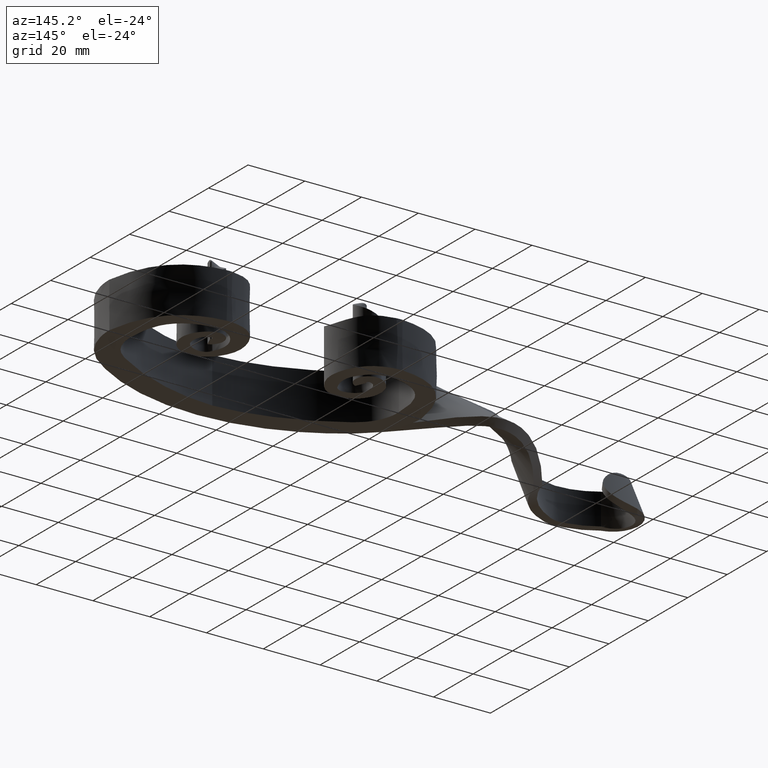
[diagram: clean part render]
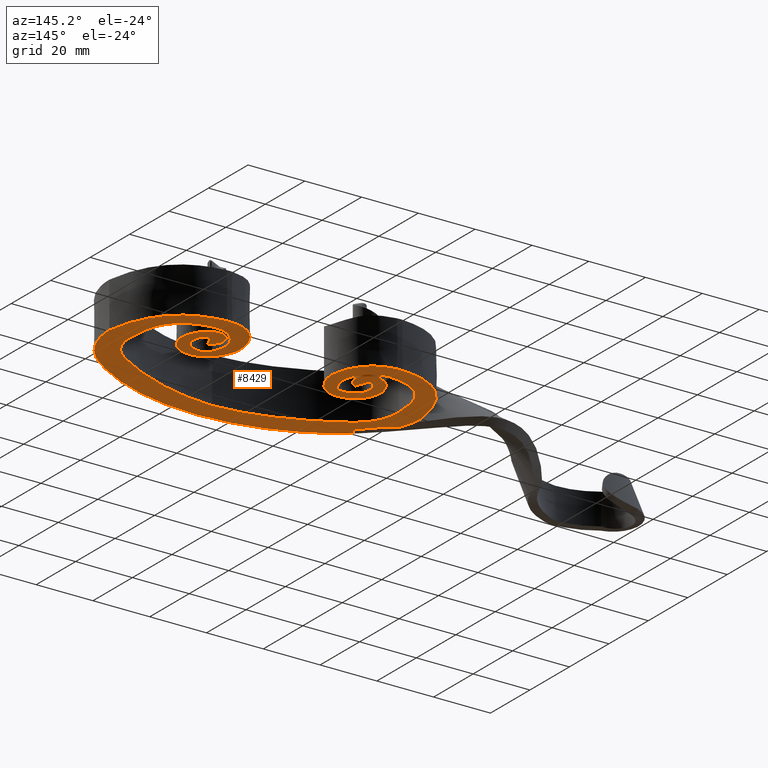
[diagram: same view with one face highlighted and labeled with its STEP entity id]
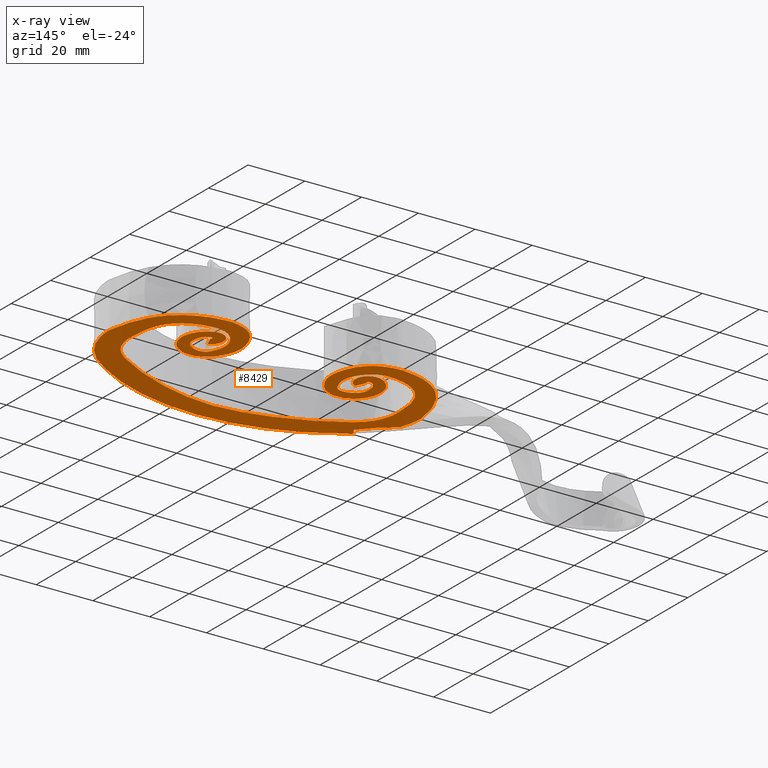
[diagram: x-ray of the same camera — body ghosted, the highlighted face saturated]
A machine part, auxiliary view. The second image highlights one B-rep face of the part: STEP entity #8429.
The next image is the same camera in x-ray: the body ghosted, the highlighted face saturated — about 0% of this face is hidden behind the body in this view.
In plain terms, the highlighted planar face has unit normal (-0, -0, -1).
Its self-contained STEP definition (entity closure, byte-faithful):
#58 = CARTESIAN_POINT ( 'NONE',  ( 27.35141491179329165, 17.43300535261033701, -8.000000000000003553 ) ) ;
#162 = EDGE_CURVE ( 'NONE', #13984, #8072, #6244, .T. ) ;
#212 = CARTESIAN_POINT ( 'NONE',  ( 24.53251284197605031, 13.97545476166239276, -8.000000000000003553 ) ) ;
#340 = VERTEX_POINT ( 'NONE', #15073 ) ;
#357 = CARTESIAN_POINT ( 'NONE',  ( -29.53353458525907627, -15.68038857561360544, -7.999999999999994671 ) ) ;
#359 = CARTESIAN_POINT ( 'NONE',  ( -55.00000000000000711, 5.000000000000189182, -8.000000000000000000 ) ) ;
#423 = ORIENTED_EDGE ( 'NONE', *, *, #5360, .T. ) ;
#431 = CARTESIAN_POINT ( 'NONE',  ( -51.66292495566779763, -4.989781795069832881, -7.999999999999994671 ) ) ;
#450 = CARTESIAN_POINT ( 'NONE',  ( -32.01821231798930256, -24.73634076149535943, -8.000000000000000000 ) ) ;
#463 = ORIENTED_EDGE ( 'NONE', *, *, #14245, .F. ) ;
#553 = EDGE_CURVE ( 'NONE', #11996, #5792, #4849, .T. ) ;
#562 = CARTESIAN_POINT ( 'NONE',  ( -29.24426990735605614, 21.38113662013650895, -7.999999999999998224 ) ) ;
#589 = CARTESIAN_POINT ( 'NONE',  ( 14.85740231020177582, 15.85993736794336506, -7.999999999999998224 ) ) ;
#596 = CARTESIAN_POINT ( 'NONE',  ( -27.95731622597993393, 17.60096872316207950, -8.000000000000000000 ) ) ;
#619 = CARTESIAN_POINT ( 'NONE',  ( -29.52316920676388534, 21.28174370169174523, -8.000000000000000000 ) ) ;
#621 = ORIENTED_EDGE ( 'NONE', *, *, #162, .T. ) ;
#630 = DIRECTION ( 'NONE',  ( -0.3914632451959847437, 0.9201937446324162106, -4.336808689942015764E-16 ) ) ;
#653 = CARTESIAN_POINT ( 'NONE',  ( -54.59758995820636329, 8.024643794869113833, -8.000000000000000000 ) ) ;
#680 = B_SPLINE_CURVE_WITH_KNOTS ( 'NONE', 3,
 ( #8183, #13292, #589, #10737, #701, #3196 ),
 .UNSPECIFIED., .F., .F.,
 ( 4, 1, 1, 4 ),
 ( 0.004080996406064379967, 0.3116771181625628273, 0.6603864596982236268, 0.9700719320905434317 ),
 .UNSPECIFIED. ) ;
#701 = CARTESIAN_POINT ( 'NONE',  ( 25.16689536574065755, 29.38085405141531936, -8.000000000000000000 ) ) ;
#780 = B_SPLINE_CURVE_WITH_KNOTS ( 'NONE', 3,
 ( #6655, #8011, #431, #12965, #8130, #5552, #6872, #15473, #15424, #9298 ),
 .UNSPECIFIED., .F., .F.,
 ( 4, 2, 2, 2, 4 ),
 ( 0.002786137763228973673, 0.006224714455727269405, 0.009663291148225566438, 0.01310186784072386000, 0.01654044453322215530 ),
 .UNSPECIFIED. ) ;
#784 = CARTESIAN_POINT ( 'NONE',  ( 30.31277531847544182, 29.98750050194372463, -8.000000000000000000 ) ) ;
#788 = CARTESIAN_POINT ( 'NONE',  ( -32.41479324200518874, 6.489582292845747169, -8.000000000000000000 ) ) ;
#802 = VERTEX_POINT ( 'NONE', #5372 ) ;
#812 = CARTESIAN_POINT ( 'NONE',  ( 28.11336640407603582, 4.086658698443428328, -8.000000000000000000 ) ) ;
#822 = CARTESIAN_POINT ( 'NONE',  ( 41.95423856881285474, 20.06569009778816337, -8.000000000000000000 ) ) ;
#967 = CARTESIAN_POINT ( 'NONE',  ( -27.54234309371933520, 16.69233630068163521, -8.000000000000003553 ) ) ;
#1024 = CARTESIAN_POINT ( 'NONE',  ( -27.29192475118565042, 16.96018775496911601, -8.000000000000000000 ) ) ;
#1032 = ORIENTED_EDGE ( 'NONE', *, *, #1654, .F. ) ;
#1036 = CARTESIAN_POINT ( 'NONE',  ( 31.02419311199154350, 29.92946926477331360, -8.000000000000000000 ) ) ;
#1047 = CARTESIAN_POINT ( 'NONE',  ( 54.98130175311230516, 0.7067885454106509480, -8.000000000000000000 ) ) ;
#1237 = CARTESIAN_POINT ( 'NONE',  ( 20.26275431740619126, 16.29881103579261392, -7.999999999999989342 ) ) ;
#1264 = CARTESIAN_POINT ( 'NONE',  ( 30.63733038037684508, 10.64071114690243647, -8.000000000000000000 ) ) ;
#1282 = CARTESIAN_POINT ( 'NONE',  ( -27.29773437634181477, 17.33820020088107938, -7.999999999999998224 ) ) ;
#1291 = B_SPLINE_CURVE_WITH_KNOTS ( 'NONE', 3,
 ( #12838, #6481, #7737, #212, #5328, #15152, #9013, #4008, #7631, #2636, #11424, #5383, #9114, #4324, #12947, #9342, #5436 ),
 .UNSPECIFIED., .F., .F.,
 ( 4, 1, 1, 1, 1, 1, 1, 1, 1, 1, 1, 1, 1, 1, 4 ),
 ( 0.000000000000000000, 0.06224708609225510642, 0.1251148688984405621, 0.1879597026410851079, 0.2501184941809708184, 0.3330926632540625043, 0.4170258302971351361, 0.4999999993703999612, 0.5829741683194525903, 0.6669073344553735350, 0.7498815034026022897, 0.8120402983732976088, 0.8748851209897182679, 0.9377528963443301224, 1.000000000000000000 ),
 .UNSPECIFIED. ) ;
#1305 = CARTESIAN_POINT ( 'NONE',  ( 27.76632154662965490, 17.64109695628950902, -8.000000000000000000 ) ) ;
#1332 = CARTESIAN_POINT ( 'NONE',  ( -27.88316912377825574, 17.62781668673478563, -8.000000000000000000 ) ) ;
#1355 = CARTESIAN_POINT ( 'NONE',  ( 27.49508889079090324, 16.71557422868988496, -8.000000000000003553 ) ) ;
#1387 = CARTESIAN_POINT ( 'NONE',  ( -27.93268240063904528, 17.60988839804848993, -7.999999999999998224 ) ) ;
#1388 = ORIENTED_EDGE ( 'NONE', *, *, #553, .T. ) ;
#1391 = CARTESIAN_POINT ( 'NONE',  ( 23.95421201824339619, 22.14712966473697975, -8.000000000000001776 ) ) ;
#1398 = B_SPLINE_CURVE_WITH_KNOTS ( 'NONE', 3,
 ( #15365, #10506, #15265, #5446 ),
 .UNSPECIFIED., .F., .F.,
 ( 4, 4 ),
 ( 8.673617379884035472E-19, 0.0003790624672732301973 ),
 .UNSPECIFIED. ) ;
#1438 = B_SPLINE_CURVE_WITH_KNOTS ( 'NONE', 3,
 ( #15845, #9729, #4606, #8270 ),
 .UNSPECIFIED., .F., .F.,
 ( 4, 4 ),
 ( 0.000000000000000000, 0.001052690893231712343 ),
 .UNSPECIFIED. ) ;
#1522 = ORIENTED_EDGE ( 'NONE', *, *, #11106, .T. ) ;
#1602 = CARTESIAN_POINT ( 'NONE',  ( -23.97676300584909725, 14.65720858399145499, -8.000000000000001776 ) ) ;
#1618 = CARTESIAN_POINT ( 'NONE',  ( -47.20418427583136634, 2.330363794932157617, -8.000000000000003553 ) ) ;
#1654 = EDGE_CURVE ( 'NONE', #6097, #13955, #8661, .T. ) ;
#1658 = CARTESIAN_POINT ( 'NONE',  ( -25.20227544788505725, 13.39731936166328730, -7.999999999999998224 ) ) ;
#1901 = VERTEX_POINT ( 'NONE', #5414 ) ;
#1915 = ORIENTED_EDGE ( 'NONE', *, *, #8875, .T. ) ;
#1927 = CARTESIAN_POINT ( 'NONE',  ( -49.90959665434134251, 20.28062515591745196, -8.000000000000000000 ) ) ;
#1952 = ORIENTED_EDGE ( 'NONE', *, *, #6873, .T. ) ;
#1954 = CARTESIAN_POINT ( 'NONE',  ( -20.45590826232299264, 5.503144682730331638, -8.000000000000000000 ) ) ;
#1976 = CARTESIAN_POINT ( 'NONE',  ( 32.41479324200518874, 6.489582292845747169, -8.000000000000000000 ) ) ;
#1984 = CARTESIAN_POINT ( 'NONE',  ( 38.23519270219507860, 22.70785905401211124, -8.000000000000000000 ) ) ;
#2047 = CARTESIAN_POINT ( 'NONE',  ( -53.11434259198252761, 14.48051185666181517, -8.000000000000000000 ) ) ;
#2068 = CARTESIAN_POINT ( 'NONE',  ( -23.73755719027468913, 3.715012993863820778, -7.999999999999998224 ) ) ;
#2075 = CARTESIAN_POINT ( 'NONE',  ( -29.42696231951486752, 17.37574113573457879, -8.000000000000000000 ) ) ;
#2087 = CARTESIAN_POINT ( 'NONE',  ( -31.02419311199154350, 29.92946926477331360, -8.000000000000000000 ) ) ;
#2147 = CARTESIAN_POINT ( 'NONE',  ( 28.89569971876204590, 29.87567134763981969, -8.000000000000000000 ) ) ;
#2172 = B_SPLINE_CURVE_WITH_KNOTS ( 'NONE', 3,
 ( #2840, #11573, #357, #10491, #9164, #1618, #2890 ),
 .UNSPECIFIED., .F., .F.,
 ( 4, 2, 1, 4 ),
 ( 0.000000000000000000, 0.6694773948472175773, 0.8174220836023660119, 1.000000000000000000 ),
 .UNSPECIFIED. ) ;
#2201 = VECTOR ( 'NONE', #6186, 1000.000000000000227 ) ;
#2211 = CARTESIAN_POINT ( 'NONE',  ( 46.66302677014277833, 12.24855364573767069, -8.000000000000001776 ) ) ;
#2317 = CARTESIAN_POINT ( 'NONE',  ( 18.71966440188703729, 7.712955228803216379, -8.000000000000000000 ) ) ;
#2321 = CARTESIAN_POINT ( 'NONE',  ( -29.44961396039283841, 23.92436144472908666, -8.000000000000000000 ) ) ;
#2406 = CARTESIAN_POINT ( 'NONE',  ( -24.30633065114623292, 7.461576278286395691, -8.000000000000000000 ) ) ;
#2437 = EDGE_CURVE ( 'NONE', #9599, #6985, #12695, .T. ) ;
#2458 = CARTESIAN_POINT ( 'NONE',  ( -29.64026892058477358, 9.421595619830604562, -8.000000000000000000 ) ) ;
#2474 = CARTESIAN_POINT ( 'NONE',  ( 27.26487118608070759, 17.05762739632987390, -8.000000000000003553 ) ) ;
#2527 = CARTESIAN_POINT ( 'NONE',  ( 27.95731622597993393, 17.60096872316207950, -8.000000000000000000 ) ) ;
#2573 = ORIENTED_EDGE ( 'NONE', *, *, #6196, .T. ) ;
#2580 = CARTESIAN_POINT ( 'NONE',  ( 27.33166035116111914, 16.88313541954616426, -8.000000000000005329 ) ) ;
#2581 = CARTESIAN_POINT ( 'NONE',  ( -23.95421201824339619, 22.14712966473697975, -8.000000000000001776 ) ) ;
#2636 = CARTESIAN_POINT ( 'NONE',  ( 24.18662504930015089, 19.94982479178699109, -8.000000000000001776 ) ) ;
#2664 = CARTESIAN_POINT ( 'NONE',  ( -27.26666072927684326, 17.23377777317652715, -8.000000000000003553 ) ) ;
#2666 = CARTESIAN_POINT ( 'NONE',  ( 27.56585298078394430, 16.68077497852966928, -8.000000000000003553 ) ) ;
#2751 = CARTESIAN_POINT ( 'NONE',  ( 29.44961396039283841, 23.92436144472908666, -8.000000000000000000 ) ) ;
#2840 = CARTESIAN_POINT ( 'NONE',  ( 0.000000000000000000, -22.00000000000000711, -8.000000000000003553 ) ) ;
#2890 = CARTESIAN_POINT ( 'NONE',  ( -47.00000000000000711, 5.000000000000132339, -8.000000000000001776 ) ) ;
#2967 = CARTESIAN_POINT ( 'NONE',  ( -29.44961396039283841, 23.92436144472908666, -8.000000000000000000 ) ) ;
#2968 = EDGE_CURVE ( 'NONE', #11996, #6985, #3862, .T. ) ;
#3115 = CARTESIAN_POINT ( 'NONE',  ( -29.79828980998388133, 23.97852399461976702, -8.000000000000000000 ) ) ;
#3127 = VERTEX_POINT ( 'NONE', #2751 ) ;
#3136 = CARTESIAN_POINT ( 'NONE',  ( 30.39536798590259536, 5.078883428836730829, -8.000000000000000000 ) ) ;
#3150 = CARTESIAN_POINT ( 'NONE',  ( -40.57441793135537011, 28.19745903484332317, -8.000000000000000000 ) ) ;
#3196 = CARTESIAN_POINT ( 'NONE',  ( 28.89569971876204590, 29.87567134763981969, -8.000000000000000000 ) ) ;
#3200 = VERTEX_POINT ( 'NONE', #7964 ) ;
#3281 = CARTESIAN_POINT ( 'NONE',  ( -22.04224958955826352, 9.875704654356788126, -8.000000000000000000 ) ) ;
#3319 = CARTESIAN_POINT ( 'NONE',  ( 18.79263901780954882, 7.609747715179471683, -8.000000000000000000 ) ) ;
#3322 = CARTESIAN_POINT ( 'NONE',  ( -34.72339498551249903, 29.62772075184603793, -8.000000000000000000 ) ) ;
#3374 = CARTESIAN_POINT ( 'NONE',  ( 13.96405436782172060, -21.72749235841372695, -8.000000000000003553 ) ) ;
#3450 = CARTESIAN_POINT ( 'NONE',  ( 0.000000000000000000, -22.00000000000000711, -8.000000000000003553 ) ) ;
#3588 = CARTESIAN_POINT ( 'NONE',  ( -47.03997305725518885, 7.327960069054856973, -8.000000000000001776 ) ) ;
#3614 = DIRECTION ( 'NONE',  ( -2.860448284855385506E-16, -4.336808689942017736E-16, -1.000000000000000000 ) ) ;
#3690 = CARTESIAN_POINT ( 'NONE',  ( -21.93075747870534187, 10.14446872611722128, -8.000000000000000000 ) ) ;
#3700 = CARTESIAN_POINT ( 'NONE',  ( 55.00000000000000711, 5.000000000000189182, -8.000000000000000000 ) ) ;
#3726 = VERTEX_POINT ( 'NONE', #15055 ) ;
#3729 = CARTESIAN_POINT ( 'NONE',  ( -27.56604201832552548, 17.60454223804948981, -7.999999999999998224 ) ) ;
#3800 = CARTESIAN_POINT ( 'NONE',  ( 27.93268240063904528, 17.60988839804848993, -7.999999999999998224 ) ) ;
#3862 = B_SPLINE_CURVE_WITH_KNOTS ( 'NONE', 3,
 ( #4202, #7769, #1658, #9150, #1602, #6732, #4258, #10424, #4144, #14028, #10476, #12931, #5416, #7926, #9204, #562, #13265 ),
 .UNSPECIFIED., .F., .F.,
 ( 4, 1, 1, 1, 1, 1, 1, 1, 1, 1, 1, 1, 1, 1, 4 ),
 ( 0.000000000000000000, 0.06224708609225510642, 0.1251148688984405621, 0.1879597026410851079, 0.2501184941809708184, 0.3330926632540625043, 0.4170258302971351361, 0.4999999993703999612, 0.5829741683194525903, 0.6669073344553735350, 0.7498815034026022897, 0.8120402983732976088, 0.8748851209897182679, 0.9377528963443301224, 1.000000000000000000 ),
 .UNSPECIFIED. ) ;
#3887 = CARTESIAN_POINT ( 'NONE',  ( 29.44961396039283841, 23.92436144472908666, -8.000000000000000000 ) ) ;
#3928 = CARTESIAN_POINT ( 'NONE',  ( 47.00000000000000711, 5.000000000000132339, -8.000000000000001776 ) ) ;
#3981 = B_SPLINE_CURVE_WITH_KNOTS ( 'NONE', 3,
 ( #4546, #784, #5749, #13316 ),
 .UNSPECIFIED., .F., .F.,
 ( 4, 4 ),
 ( 1.040834085586084257E-17, 0.002129173158977344139 ),
 .UNSPECIFIED. ) ;
#4008 = CARTESIAN_POINT ( 'NONE',  ( 23.25861001801633066, 17.76838467196084181, -8.000000000000001776 ) ) ;
#4064 = EDGE_CURVE ( 'NONE', #340, #8873, #8701, .T. ) ;
#4144 = CARTESIAN_POINT ( 'NONE',  ( -23.57005311635930767, 18.92400776751703262, -7.999999999999998224 ) ) ;
#4193 = EDGE_CURVE ( 'NONE', #10246, #14311, #15528, .T. ) ;
#4202 = CARTESIAN_POINT ( 'NONE',  ( -26.00000000000000711, 13.00000000000000355, -8.000000000000001776 ) ) ;
#4243 = VERTEX_POINT ( 'NONE', #7198 ) ;
#4258 = CARTESIAN_POINT ( 'NONE',  ( -23.24737758729707693, 16.59913720156693984, -7.999999999999998224 ) ) ;
#4262 = CARTESIAN_POINT ( 'NONE',  ( -29.44961396039283841, 23.92436144472908666, -8.000000000000000000 ) ) ;
#4301 = CARTESIAN_POINT ( 'NONE',  ( 22.04224958955826352, 9.875704654356788126, -8.000000000000000000 ) ) ;
#4311 = VERTEX_POINT ( 'NONE', #1036 ) ;
#4324 = CARTESIAN_POINT ( 'NONE',  ( 27.80268693093351118, 21.66249558907877670, -8.000000000000001776 ) ) ;
#4334 = EDGE_CURVE ( 'NONE', #6097, #3200, #4410, .T. ) ;
#4410 = B_SPLINE_CURVE_WITH_KNOTS ( 'NONE', 3,
 ( #16032, #14712, #9753, #3690 ),
 .UNSPECIFIED., .F., .F.,
 ( 4, 4 ),
 ( 1.350151005884234066E-15, 0.0002909718492439993453 ),
 .UNSPECIFIED. ) ;
#4423 = CARTESIAN_POINT ( 'NONE',  ( 21.97227120249229060, 10.05668509429353286, -8.000000000000010658 ) ) ;
#4446 = ORIENTED_EDGE ( 'NONE', *, *, #10718, .T. ) ;
#4526 = CARTESIAN_POINT ( 'NONE',  ( 44.85664144164155687, 16.61578162626717514, -8.000000000000001776 ) ) ;
#4535 = B_SPLINE_CURVE_WITH_KNOTS ( 'NONE', 3,
 ( #9203, #5463, #450, #11890 ),
 .UNSPECIFIED., .F., .F.,
 ( 4, 4 ),
 ( 0.000000000000000000, 0.6694773948465680968 ),
 .UNSPECIFIED. ) ;
#4546 = CARTESIAN_POINT ( 'NONE',  ( 31.02419311199154350, 29.92946926477331360, -8.000000000000000000 ) ) ;
#4563 = ORIENTED_EDGE ( 'NONE', *, *, #10919, .F. ) ;
#4572 = CARTESIAN_POINT ( 'NONE',  ( 35.00064138199365971, 14.08806735994447479, -8.000000000000000000 ) ) ;
#4601 = B_SPLINE_CURVE_WITH_KNOTS ( 'NONE', 3,
 ( #13677, #8536, #14944, #4867, #15988, #1047, #3700 ),
 .UNSPECIFIED., .F., .F.,
 ( 4, 2, 1, 4 ),
 ( 0.000000000000000000, 0.6694773948472175773, 0.8174220836023660119, 1.000000000000000000 ),
 .UNSPECIFIED. ) ;
#4606 = CARTESIAN_POINT ( 'NONE',  ( 30.14877174253979675, 23.99558548885704212, -8.000000000000014211 ) ) ;
#4631 = CARTESIAN_POINT ( 'NONE',  ( 34.25946423951132402, 8.843206983007620536, -8.000000000000000000 ) ) ;
#4653 = ORIENTED_EDGE ( 'NONE', *, *, #2437, .T. ) ;
#4694 = CARTESIAN_POINT ( 'NONE',  ( 18.94680795299915133, 7.409485030458390575, -8.000000000000000000 ) ) ;
#4750 = CARTESIAN_POINT ( 'NONE',  ( 30.50105975805525915, 23.97554592744615931, -8.000000000000000000 ) ) ;
#4787 = CARTESIAN_POINT ( 'NONE',  ( -27.49508889079090324, 16.71557422868988496, -8.000000000000003553 ) ) ;
#4802 = CARTESIAN_POINT ( 'NONE',  ( -44.85664144164155687, 16.61578162626717514, -8.000000000000001776 ) ) ;
#4849 = LINE ( 'NONE', #5475, #6585 ) ;
#4860 = CARTESIAN_POINT ( 'NONE',  ( -30.50105975805525915, 23.97554592744615931, -8.000000000000000000 ) ) ;
#4867 = CARTESIAN_POINT ( 'NONE',  ( 47.86878474599605227, -12.84841144050293948, -7.999999999999998224 ) ) ;
#4879 = CARTESIAN_POINT ( 'NONE',  ( 22.54332498755603709, 8.480141711833205420, -8.000000000000000000 ) ) ;
#4896 = CARTESIAN_POINT ( 'NONE',  ( -27.95731622597993393, 17.60096872316207950, -8.000000000000000000 ) ) ;
#4963 = ORIENTED_EDGE ( 'NONE', *, *, #14533, .F. ) ;
#5036 = CARTESIAN_POINT ( 'NONE',  ( 22.04224958955826352, 9.875704654356788126, -8.000000000000000000 ) ) ;
#5135 = CARTESIAN_POINT ( 'NONE',  ( 29.64026892058477358, 9.421595619830604562, -8.000000000000000000 ) ) ;
#5189 = VERTEX_POINT ( 'NONE', #8007 ) ;
#5206 = CARTESIAN_POINT ( 'NONE',  ( -27.95731622597993393, 17.60096872316207950, -8.000000000000000000 ) ) ;
#5277 = CARTESIAN_POINT ( 'NONE',  ( -53.47191083638099229, -3.581618127449665234, -8.000000000000000000 ) ) ;
#5304 = ORIENTED_EDGE ( 'NONE', *, *, #8395, .F. ) ;
#5328 = CARTESIAN_POINT ( 'NONE',  ( 23.97676300584909725, 14.65720858399145499, -8.000000000000001776 ) ) ;
#5360 = EDGE_CURVE ( 'NONE', #13831, #9663, #15644, .T. ) ;
#5372 = CARTESIAN_POINT ( 'NONE',  ( -47.00000000000000711, 5.000000000000132339, -8.000000000000001776 ) ) ;
#5383 = CARTESIAN_POINT ( 'NONE',  ( 25.97208376904264071, 21.31541992363372984, -8.000000000000000000 ) ) ;
#5414 = CARTESIAN_POINT ( 'NONE',  ( -31.02419311199154350, 29.92946926477331360, -8.000000000000000000 ) ) ;
#5416 = CARTESIAN_POINT ( 'NONE',  ( -26.92610165030750835, 21.59007697777456158, -8.000000000000000000 ) ) ;
#5436 = CARTESIAN_POINT ( 'NONE',  ( 29.52316920676388534, 21.28174370169174523, -8.000000000000000000 ) ) ;
#5446 = CARTESIAN_POINT ( 'NONE',  ( -18.94680795299915133, 7.409485030458390575, -8.000000000000000000 ) ) ;
#5463 = CARTESIAN_POINT ( 'NONE',  ( -16.22723460245941496, -29.99999999999999289, -8.000000000000000000 ) ) ;
#5468 = VERTEX_POINT ( 'NONE', #11213 ) ;
#5475 = CARTESIAN_POINT ( 'NONE',  ( -27.56585298078394430, 16.68077497852966928, -8.000000000000003553 ) ) ;
#5510 = ORIENTED_EDGE ( 'NONE', *, *, #6656, .F. ) ;
#5552 = CARTESIAN_POINT ( 'NONE',  ( -47.28956902376972238, -8.685305254418512533, -7.999999999999994671 ) ) ;
#5584 = CARTESIAN_POINT ( 'NONE',  ( -30.14877174253979675, 23.99558548885704212, -8.000000000000014211 ) ) ;
#5718 = B_SPLINE_CURVE_WITH_KNOTS ( 'NONE', 3,
 ( #7501, #13861, #16274, #10052, #15120, #7603, #7859, #15374 ),
 .UNSPECIFIED., .F., .F.,
 ( 4, 1, 1, 1, 1, 4 ),
 ( 0.000000000000000000, 0.2033785708517071855, 0.4689190472344710869, 0.5327106975142505974, 0.7344595236172355435, 0.9778153222986458726 ),
 .UNSPECIFIED. ) ;
#5749 = CARTESIAN_POINT ( 'NONE',  ( 29.60327752073222030, 29.96956786290098407, -8.000000000000017764 ) ) ;
#5792 = VERTEX_POINT ( 'NONE', #6045 ) ;
#5797 = B_SPLINE_CURVE_WITH_KNOTS ( 'NONE', 3,
 ( #8584, #3588, #15980, #4802, #8632, #12359, #8529, #4860 ),
 .UNSPECIFIED., .F., .F.,
 ( 4, 1, 1, 1, 1, 4 ),
 ( 0.000000000000000000, 0.2033785708517071855, 0.4689190472344710869, 0.5327106975142505974, 0.7344595236172355435, 0.9863662253480295350 ),
 .UNSPECIFIED. ) ;
#5839 = ORIENTED_EDGE ( 'NONE', *, *, #10256, .F. ) ;
#5884 = CARTESIAN_POINT ( 'NONE',  ( -29.60327752073222030, 29.96956786290098407, -8.000000000000017764 ) ) ;
#5885 = VERTEX_POINT ( 'NONE', #12511 ) ;
#5977 = CARTESIAN_POINT ( 'NONE',  ( 0.000000000000000000, -22.00000000000000711, -8.000000000000003553 ) ) ;
#6045 = CARTESIAN_POINT ( 'NONE',  ( -27.56585298078394430, 16.68077497852966928, -8.000000000000003553 ) ) ;
#6097 = VERTEX_POINT ( 'NONE', #3281 ) ;
#6186 = DIRECTION ( 'NONE',  ( 0.5999999999999989786, 0.8000000000000007105, -0.000000000000000000 ) ) ;
#6196 = EDGE_CURVE ( 'NONE', #10246, #9599, #1398, .T. ) ;
#6208 = CARTESIAN_POINT ( 'NONE',  ( -28.44497837956595632, 8.609805734833971158, -8.000000000000000000 ) ) ;
#6225 = ORIENTED_EDGE ( 'NONE', *, *, #11399, .T. ) ;
#6238 = ORIENTED_EDGE ( 'NONE', *, *, #8278, .F. ) ;
#6244 = B_SPLINE_CURVE_WITH_KNOTS ( 'NONE', 3,
 ( #4262, #3115, #5584, #6683 ),
 .UNSPECIFIED., .F., .F.,
 ( 4, 4 ),
 ( 0.000000000000000000, 0.001052690893231712343 ),
 .UNSPECIFIED. ) ;
#6257 = CARTESIAN_POINT ( 'NONE',  ( -31.00743668286099464, 12.17032458897546654, -8.000000000000000000 ) ) ;
#6335 = CARTESIAN_POINT ( 'NONE',  ( -29.52316920676388534, 21.28174370169174523, -8.000000000000000000 ) ) ;
#6350 = CARTESIAN_POINT ( 'NONE',  ( -18.94680795299915133, 7.409485030458390575, -8.000000000000000000 ) ) ;
#6373 = CARTESIAN_POINT ( 'NONE',  ( -43.44744243694510288, -12.92992324926026271, -7.999999999999998224 ) ) ;
#6377 = EDGE_CURVE ( 'NONE', #5792, #13955, #7717, .T. ) ;
#6481 = CARTESIAN_POINT ( 'NONE',  ( 25.73497272231244182, 13.13200103784572192, -8.000000000000001776 ) ) ;
#6543 = FACE_OUTER_BOUND ( 'NONE', #12355, .T. ) ;
#6585 = VECTOR ( 'NONE', #630, 1000.000000000000000 ) ;
#6655 = CARTESIAN_POINT ( 'NONE',  ( -53.47191083638099229, -3.581618127449665234, -8.000000000000000000 ) ) ;
#6656 = EDGE_CURVE ( 'NONE', #9476, #5885, #13213, .T. ) ;
#6683 = CARTESIAN_POINT ( 'NONE',  ( -30.50105975805525915, 23.97554592744615931, -8.000000000000000000 ) ) ;
#6732 = CARTESIAN_POINT ( 'NONE',  ( -23.51301401795414847, 15.53500353605150508, -8.000000000000003553 ) ) ;
#6859 = ORIENTED_EDGE ( 'NONE', *, *, #4193, .F. ) ;
#6867 = ORIENTED_EDGE ( 'NONE', *, *, #6377, .T. ) ;
#6872 = CARTESIAN_POINT ( 'NONE',  ( -46.46733463210562576, -9.480164917284817250, -7.999999999999994671 ) ) ;
#6873 = EDGE_CURVE ( 'NONE', #9476, #7158, #15732, .T. ) ;
#6923 = ORIENTED_EDGE ( 'NONE', *, *, #2968, .F. ) ;
#6985 = VERTEX_POINT ( 'NONE', #6335 ) ;
#7089 = ORIENTED_EDGE ( 'NONE', *, *, #14335, .F. ) ;
#7104 = EDGE_CURVE ( 'NONE', #12248, #12688, #680, .T. ) ;
#7135 = CARTESIAN_POINT ( 'NONE',  ( -30.63733038037684508, 10.64071114690243647, -8.000000000000000000 ) ) ;
#7158 = VERTEX_POINT ( 'NONE', #10791 ) ;
#7198 = CARTESIAN_POINT ( 'NONE',  ( -45.00000000000004263, -14.99999999999997513, -8.000000000000001776 ) ) ;
#7206 = CARTESIAN_POINT ( 'NONE',  ( 42.55713247091480866, -7.035337933473873484, -7.999999999999996447 ) ) ;
#7212 = CARTESIAN_POINT ( 'NONE',  ( 27.54234309371933520, 16.69233630068163521, -8.000000000000003553 ) ) ;
#7241 = CARTESIAN_POINT ( 'NONE',  ( -27.56585298078394430, 16.68077497852966928, -8.000000000000003553 ) ) ;
#7254 = CARTESIAN_POINT ( 'NONE',  ( -16.71631783947801964, 10.54627493894000878, -8.000000000000000000 ) ) ;
#7277 = B_SPLINE_CURVE_WITH_KNOTS ( 'NONE', 3,
 ( #2087, #10891, #5884, #14658 ),
 .UNSPECIFIED., .F., .F.,
 ( 4, 4 ),
 ( 1.040834085586084257E-17, 0.002129173158977344139 ),
 .UNSPECIFIED. ) ;
#7307 = CARTESIAN_POINT ( 'NONE',  ( -14.85740231020177582, 15.85993736794336506, -7.999999999999998224 ) ) ;
#7477 = CARTESIAN_POINT ( 'NONE',  ( -21.93075747870534187, 10.14446872611722128, -8.000000000000000000 ) ) ;
#7501 = CARTESIAN_POINT ( 'NONE',  ( 55.00000000000000711, 5.000000000000189182, -8.000000000000000000 ) ) ;
#7514 = CARTESIAN_POINT ( 'NONE',  ( -30.99636596809154199, 13.61868117833641101, -8.000000000000000000 ) ) ;
#7603 = CARTESIAN_POINT ( 'NONE',  ( 40.57441793135537011, 28.19745903484332317, -8.000000000000000000 ) ) ;
#7628 = CARTESIAN_POINT ( 'NONE',  ( 27.64911155078763016, 17.62935191988319517, -8.000000000000003553 ) ) ;
#7631 = CARTESIAN_POINT ( 'NONE',  ( 23.57005311635930767, 18.92400776751703262, -7.999999999999998224 ) ) ;
#7701 = CARTESIAN_POINT ( 'NONE',  ( -18.71966440188703729, 7.712955228803216379, -8.000000000000000000 ) ) ;
#7717 = B_SPLINE_CURVE_WITH_KNOTS ( 'NONE', 3,
 ( #7241, #967, #4787, #13548, #14817, #1024, #8727, #2664, #1282, #15075, #11251, #3729, #8886, #15025, #1332, #1387, #5206 ),
 .UNSPECIFIED., .F., .F.,
 ( 4, 1, 1, 1, 1, 1, 1, 1, 1, 1, 1, 1, 1, 1, 4 ),
 ( 0.000000000000000000, 0.06224708609225510642, 0.1251148688984405621, 0.1879597026410851079, 0.2501184941809708184, 0.3330926632540625043, 0.4170258302971351361, 0.4999999993703999612, 0.5829741683194525903, 0.6669073344553735350, 0.7498815034026022897, 0.8120402983732976088, 0.8748851209897182679, 0.9377528963443301224, 1.000000000000000000 ),
 .UNSPECIFIED. ) ;
#7733 = EDGE_CURVE ( 'NONE', #5189, #8873, #1291, .T. ) ;
#7737 = CARTESIAN_POINT ( 'NONE',  ( 25.20227544788505725, 13.39731936166328730, -7.999999999999998224 ) ) ;
#7769 = CARTESIAN_POINT ( 'NONE',  ( -25.73497272231244182, 13.13200103784572192, -8.000000000000001776 ) ) ;
#7859 = CARTESIAN_POINT ( 'NONE',  ( 34.72339498551249903, 29.62772075184603793, -8.000000000000000000 ) ) ;
#7887 = CARTESIAN_POINT ( 'NONE',  ( -54.98712170127076604, 2.043077891097512921, -8.000000000000000000 ) ) ;
#7926 = CARTESIAN_POINT ( 'NONE',  ( -27.80268693093351118, 21.66249558907877670, -8.000000000000001776 ) ) ;
#7964 = CARTESIAN_POINT ( 'NONE',  ( -21.93075747870534187, 10.14446872611722128, -8.000000000000000000 ) ) ;
#8007 = CARTESIAN_POINT ( 'NONE',  ( 26.00000000000000711, 13.00000000000000355, -8.000000000000001776 ) ) ;
#8011 = CARTESIAN_POINT ( 'NONE',  ( -52.56832832449285320, -4.286850655381781117, -8.000000000000005329 ) ) ;
#8072 = VERTEX_POINT ( 'NONE', #15385 ) ;
#8084 = CARTESIAN_POINT ( 'NONE',  ( 21.93075747870534187, 10.14446872611722128, -8.000000000000000000 ) ) ;
#8117 = CARTESIAN_POINT ( 'NONE',  ( 34.22741881072497705, 17.74674200117013356, -8.000000000000000000 ) ) ;
#8119 = B_SPLINE_CURVE_WITH_KNOTS ( 'NONE', 3,
 ( #2321, #12425, #2581, #8804, #11325, #7477 ),
 .UNSPECIFIED., .F., .F.,
 ( 4, 1, 1, 4 ),
 ( 0.02725269130086191774, 0.3396135403017763177, 0.6883228818374371727, 0.9929788526816606398 ),
 .UNSPECIFIED. ) ;
#8130 = CARTESIAN_POINT ( 'NONE',  ( -48.99357567092175003, -7.158210454621803720, -7.999999999999994671 ) ) ;
#8183 = CARTESIAN_POINT ( 'NONE',  ( 18.71966440188703729, 7.712955228803216379, -8.000000000000000000 ) ) ;
#8259 = ORIENTED_EDGE ( 'NONE', *, *, #16292, .F. ) ;
#8270 = CARTESIAN_POINT ( 'NONE',  ( 30.50105975805525915, 23.97554592744615931, -8.000000000000000000 ) ) ;
#8278 = EDGE_CURVE ( 'NONE', #3127, #12292, #1438, .T. ) ;
#8301 = CARTESIAN_POINT ( 'NONE',  ( 47.20418427583136634, 2.330363794932157617, -8.000000000000003553 ) ) ;
#8395 = EDGE_CURVE ( 'NONE', #4311, #12688, #3981, .T. ) ;
#8407 = CARTESIAN_POINT ( 'NONE',  ( -28.89569971876204590, 29.87567134763981969, -8.000000000000000000 ) ) ;
#8416 = CARTESIAN_POINT ( 'NONE',  ( 47.00000000000000711, 5.000000000000132339, -8.000000000000001776 ) ) ;
#8429 = ADVANCED_FACE ( 'NONE', ( #6543 ), #13204, .T. ) ;
#8478 = CARTESIAN_POINT ( 'NONE',  ( 47.03997305725518885, 7.327960069054856973, -8.000000000000001776 ) ) ;
#8529 = CARTESIAN_POINT ( 'NONE',  ( -33.56179767221147614, 23.80143882560938806, -8.000000000000000000 ) ) ;
#8533 = CARTESIAN_POINT ( 'NONE',  ( 18.71966440188703729, 7.712955228803216379, -8.000000000000000000 ) ) ;
#8536 = CARTESIAN_POINT ( 'NONE',  ( 16.22723460247515703, -29.99999999999999289, -8.000000000000000000 ) ) ;
#8584 = CARTESIAN_POINT ( 'NONE',  ( -47.00000000000000711, 5.000000000000132339, -8.000000000000001776 ) ) ;
#8587 = VERTEX_POINT ( 'NONE', #11291 ) ;
#8632 = CARTESIAN_POINT ( 'NONE',  ( -41.95423856881285474, 20.06569009778816337, -8.000000000000000000 ) ) ;
#8661 = B_SPLINE_CURVE_WITH_KNOTS ( 'NONE', 3,
 ( #10013, #15903, #2406, #10879, #6208, #2458, #7135, #6257, #7514, #10065, #2075, #4896 ),
 .UNSPECIFIED., .F., .F.,
 ( 4, 1, 1, 1, 1, 1, 1, 1, 1, 4 ),
 ( 0.006314118068460014208, 0.2222222222222222099, 0.3333333333333332593, 0.3933235458510605520, 0.4444444444444443088, 0.5555555555555555802, 0.6666666666666665186, 0.6966440338507809971, 0.7777777777777776791, 1.000000000000000000 ),
 .UNSPECIFIED. ) ;
#8695 = LINE ( 'NONE', #11339, #2201 ) ;
#8701 = B_SPLINE_CURVE_WITH_KNOTS ( 'NONE', 3,
 ( #11683, #13005, #10672, #812, #3136, #1976, #4631, #9641, #4572, #8117, #13287, #13341 ),
 .UNSPECIFIED., .F., .F.,
 ( 4, 1, 1, 1, 1, 1, 1, 1, 1, 4 ),
 ( 0.007078396953870021852, 0.2222222222222222099, 0.3333333333333332593, 0.3933235458510605520, 0.4444444444444443088, 0.5555555555555555802, 0.6666666666666665186, 0.6966440338507809971, 0.7777777777777776791, 1.000000000000000000 ),
 .UNSPECIFIED. ) ;
#8727 = CARTESIAN_POINT ( 'NONE',  ( -27.26487118608070759, 17.05762739632987390, -8.000000000000003553 ) ) ;
#8787 = CARTESIAN_POINT ( 'NONE',  ( 27.38601291663700721, 23.60380613635894065, -8.000000000000000000 ) ) ;
#8804 = CARTESIAN_POINT ( 'NONE',  ( -20.26275431740619126, 16.29881103579261392, -7.999999999999989342 ) ) ;
#8815 = CARTESIAN_POINT ( 'NONE',  ( 27.95731622597993393, 17.60096872316207950, -8.000000000000000000 ) ) ;
#8835 = DIRECTION ( 'NONE',  ( 0.3914632451959847437, 0.9201937446324162106, -4.336808689942015764E-16 ) ) ;
#8857 = CARTESIAN_POINT ( 'NONE',  ( 27.47708036205116500, 17.55645720223687078, -8.000000000000001776 ) ) ;
#8873 = VERTEX_POINT ( 'NONE', #12037 ) ;
#8875 = EDGE_CURVE ( 'NONE', #9663, #12292, #11347, .T. ) ;
#8886 = CARTESIAN_POINT ( 'NONE',  ( -27.64911155078763016, 17.62935191988319517, -8.000000000000003553 ) ) ;
#8910 = CARTESIAN_POINT ( 'NONE',  ( 27.56604201832552548, 17.60454223804948981, -7.999999999999998224 ) ) ;
#8925 = CARTESIAN_POINT ( 'NONE',  ( 28.44497837956595632, 8.609805734833971158, -8.000000000000000000 ) ) ;
#9013 = CARTESIAN_POINT ( 'NONE',  ( 23.24737758729707693, 16.59913720156693984, -7.999999999999998224 ) ) ;
#9114 = CARTESIAN_POINT ( 'NONE',  ( 26.92610165030750835, 21.59007697777456158, -8.000000000000000000 ) ) ;
#9150 = CARTESIAN_POINT ( 'NONE',  ( -24.53251284197605031, 13.97545476166239276, -8.000000000000003553 ) ) ;
#9164 = CARTESIAN_POINT ( 'NONE',  ( -46.32671326687710689, -2.714993271481086268, -7.999999999999998224 ) ) ;
#9197 = VERTEX_POINT ( 'NONE', #6373 ) ;
#9203 = CARTESIAN_POINT ( 'NONE',  ( -0.000000000000000000, -30.00000000000000711, -8.000000000000000000 ) ) ;
#9204 = CARTESIAN_POINT ( 'NONE',  ( -28.68369037751179462, 21.58091351312232575, -8.000000000000000000 ) ) ;
#9298 = CARTESIAN_POINT ( 'NONE',  ( -43.44744243694510288, -12.92992324926026271, -7.999999999999998224 ) ) ;
#9342 = CARTESIAN_POINT ( 'NONE',  ( 29.24426990735605614, 21.38113662013650895, -7.999999999999998224 ) ) ;
#9384 = CARTESIAN_POINT ( 'NONE',  ( -35.00947000332063652, 11.61259910995765132, -8.000000000000000000 ) ) ;
#9429 = CARTESIAN_POINT ( 'NONE',  ( 22.00943523930273926, 9.967097070313615248, -8.000000000000000000 ) ) ;
#9476 = VERTEX_POINT ( 'NONE', #12236 ) ;
#9478 = CARTESIAN_POINT ( 'NONE',  ( -45.59128540938324647, 24.82665863005939499, -8.000000000000000000 ) ) ;
#9599 = VERTEX_POINT ( 'NONE', #6350 ) ;
#9641 = CARTESIAN_POINT ( 'NONE',  ( 35.00947000332063652, 11.61259910995765132, -8.000000000000000000 ) ) ;
#9663 = VERTEX_POINT ( 'NONE', #3928 ) ;
#9729 = CARTESIAN_POINT ( 'NONE',  ( 29.79828980998388133, 23.97852399461976702, -8.000000000000000000 ) ) ;
#9753 = CARTESIAN_POINT ( 'NONE',  ( -21.97227120249229060, 10.05668509429353286, -8.000000000000010658 ) ) ;
#10013 = CARTESIAN_POINT ( 'NONE',  ( -22.04224958955826352, 9.875704654356788126, -8.000000000000000000 ) ) ;
#10027 = CARTESIAN_POINT ( 'NONE',  ( 27.29192475118565042, 16.96018775496911601, -8.000000000000000000 ) ) ;
#10034 = CARTESIAN_POINT ( 'NONE',  ( -55.00000000000000711, 5.000000000000189182, -8.000000000000000000 ) ) ;
#10052 = CARTESIAN_POINT ( 'NONE',  ( 49.90959665434134251, 20.28062515591745196, -8.000000000000000000 ) ) ;
#10065 = CARTESIAN_POINT ( 'NONE',  ( -30.64683110558693357, 15.86905751140550791, -8.000000000000000000 ) ) ;
#10083 = CARTESIAN_POINT ( 'NONE',  ( 27.40448556956626902, 16.79054653467951397, -8.000000000000005329 ) ) ;
#10099 = CARTESIAN_POINT ( 'NONE',  ( 31.00743668286099464, 12.17032458897546654, -8.000000000000000000 ) ) ;
#10102 = CARTESIAN_POINT ( 'NONE',  ( -26.00000000000000711, 13.00000000000000355, -8.000000000000001776 ) ) ;
#10243 = CARTESIAN_POINT ( 'NONE',  ( 29.42696231951486752, 17.37574113573457879, -8.000000000000000000 ) ) ;
#10246 = VERTEX_POINT ( 'NONE', #7701 ) ;
#10256 = EDGE_CURVE ( 'NONE', #5468, #4311, #5718, .T. ) ;
#10424 = CARTESIAN_POINT ( 'NONE',  ( -23.25861001801633066, 17.76838467196084181, -8.000000000000001776 ) ) ;
#10476 = CARTESIAN_POINT ( 'NONE',  ( -25.02121258049997721, 20.76880552017687265, -8.000000000000000000 ) ) ;
#10491 = CARTESIAN_POINT ( 'NONE',  ( -42.55713247091480866, -7.035337933473873484, -7.999999999999996447 ) ) ;
#10506 = CARTESIAN_POINT ( 'NONE',  ( -18.79263901780954882, 7.609747715179471683, -8.000000000000000000 ) ) ;
#10557 = EDGE_CURVE ( 'NONE', #4243, #9197, #8695, .T. ) ;
#10618 = ORIENTED_EDGE ( 'NONE', *, *, #15735, .T. ) ;
#10627 = CARTESIAN_POINT ( 'NONE',  ( -0.000000000000000000, -30.00000000000000711, -8.000000000000000000 ) ) ;
#10639 = VERTEX_POINT ( 'NONE', #10627 ) ;
#10672 = CARTESIAN_POINT ( 'NONE',  ( 23.73755719027468913, 3.715012993863820778, -7.999999999999998224 ) ) ;
#10718 = EDGE_CURVE ( 'NONE', #15496, #1901, #13169, .T. ) ;
#10737 = CARTESIAN_POINT ( 'NONE',  ( 18.99720667645437544, 26.84984639190492217, -8.000000000000000000 ) ) ;
#10791 = CARTESIAN_POINT ( 'NONE',  ( 27.95731622597993393, 17.60096872316207950, -8.000000000000000000 ) ) ;
#10879 = CARTESIAN_POINT ( 'NONE',  ( -27.04064237399991200, 7.932193144384889649, -8.000000000000000000 ) ) ;
#10891 = CARTESIAN_POINT ( 'NONE',  ( -30.31277531847544182, 29.98750050194372463, -8.000000000000000000 ) ) ;
#10919 = EDGE_CURVE ( 'NONE', #13984, #3200, #8119, .T. ) ;
#10934 = VECTOR ( 'NONE', #8835, 1000.000000000000000 ) ;
#11000 = CARTESIAN_POINT ( 'NONE',  ( 0.000000000000000000, -22.00000000000000711, -8.000000000000003553 ) ) ;
#11106 = EDGE_CURVE ( 'NONE', #8587, #15496, #11918, .T. ) ;
#11163 = CARTESIAN_POINT ( 'NONE',  ( 30.50105975805525915, 23.97554592744615931, -8.000000000000000000 ) ) ;
#11165 = CARTESIAN_POINT ( 'NONE',  ( -28.89569971876204590, 29.87567134763981969, -8.000000000000000000 ) ) ;
#11213 = CARTESIAN_POINT ( 'NONE',  ( 55.00000000000000711, 5.000000000000189182, -8.000000000000000000 ) ) ;
#11251 = CARTESIAN_POINT ( 'NONE',  ( -27.47708036205116500, 17.55645720223687078, -8.000000000000001776 ) ) ;
#11291 = CARTESIAN_POINT ( 'NONE',  ( -53.47191083638099229, -3.581618127449665234, -8.000000000000000000 ) ) ;
#11325 = CARTESIAN_POINT ( 'NONE',  ( -20.94464650454645493, 12.22966838532157929, -7.999999999999998224 ) ) ;
#11339 = CARTESIAN_POINT ( 'NONE',  ( -43.20000000000003126, -12.59999999999998010, -8.000000000000000000 ) ) ;
#11347 = B_SPLINE_CURVE_WITH_KNOTS ( 'NONE', 3,
 ( #8416, #8478, #2211, #4526, #822, #1984, #15821, #4750 ),
 .UNSPECIFIED., .F., .F.,
 ( 4, 1, 1, 1, 1, 4 ),
 ( 0.000000000000000000, 0.2033785708517071855, 0.4689190472344710869, 0.5327106975142505974, 0.7344595236172355435, 0.9863662253480295350 ),
 .UNSPECIFIED. ) ;
#11399 = EDGE_CURVE ( 'NONE', #3127, #5885, #14517, .T. ) ;
#11420 = CARTESIAN_POINT ( 'NONE',  ( 27.88316912377825574, 17.62781668673478563, -8.000000000000000000 ) ) ;
#11424 = CARTESIAN_POINT ( 'NONE',  ( 25.02121258049997721, 20.76880552017687265, -8.000000000000000000 ) ) ;
#11490 = CARTESIAN_POINT ( 'NONE',  ( 27.04064237399991200, 7.932193144384889649, -8.000000000000000000 ) ) ;
#11573 = CARTESIAN_POINT ( 'NONE',  ( -13.96405436782172060, -21.72749235841372695, -8.000000000000003553 ) ) ;
#11683 = CARTESIAN_POINT ( 'NONE',  ( 18.94680795299915133, 7.409485030458390575, -8.000000000000000000 ) ) ;
#11808 = CARTESIAN_POINT ( 'NONE',  ( -55.00000000000000711, 5.000000000000189182, -8.000000000000000000 ) ) ;
#11834 = ORIENTED_EDGE ( 'NONE', *, *, #4334, .T. ) ;
#11890 = CARTESIAN_POINT ( 'NONE',  ( -45.00000000000004263, -14.99999999999997513, -8.000000000000001776 ) ) ;
#11894 = CARTESIAN_POINT ( 'NONE',  ( -30.39536798590259536, 5.078883428836730829, -8.000000000000000000 ) ) ;
#11912 = ORIENTED_EDGE ( 'NONE', *, *, #7733, .T. ) ;
#11918 = B_SPLINE_CURVE_WITH_KNOTS ( 'NONE', 3,
 ( #5277, #14093, #7887, #359 ),
 .UNSPECIFIED., .F., .F.,
 ( 4, 4 ),
 ( 0.8742506202399099591, 1.000000000000000000 ),
 .UNSPECIFIED. ) ;
#11996 = VERTEX_POINT ( 'NONE', #10102 ) ;
#12037 = CARTESIAN_POINT ( 'NONE',  ( 29.52316920676388534, 21.28174370169174523, -8.000000000000000000 ) ) ;
#12066 = CARTESIAN_POINT ( 'NONE',  ( -31.84467490471190487, 20.29414281920287522, -8.000000000000000000 ) ) ;
#12097 = CARTESIAN_POINT ( 'NONE',  ( 18.86835353486451794, 7.508590982411033288, -8.000000000000010658 ) ) ;
#12236 = CARTESIAN_POINT ( 'NONE',  ( 22.04224958955826352, 9.875704654356788126, -8.000000000000000000 ) ) ;
#12248 = VERTEX_POINT ( 'NONE', #2317 ) ;
#12292 = VERTEX_POINT ( 'NONE', #11163 ) ;
#12355 = EDGE_LOOP ( 'NONE', ( #15850, #1522, #4446, #10618, #6859, #2573, #4653, #6923, #1388, #6867, #1032, #11834, #4563, #621, #8259, #4963, #423, #1915, #6238, #6225, #5510, #1952, #7089, #14673, #11912, #13969, #14653, #13759, #5304, #5839, #463, #13573, #14789 ) ) ;
#12356 = CARTESIAN_POINT ( 'NONE',  ( -25.16689536574065755, 29.38085405141531936, -8.000000000000000000 ) ) ;
#12359 = CARTESIAN_POINT ( 'NONE',  ( -38.23519270219507860, 22.70785905401211124, -8.000000000000000000 ) ) ;
#12387 = DIRECTION ( 'NONE',  ( 0.000000000000000000, -1.000000000000000000, 4.336808689942017736E-16 ) ) ;
#12423 = CARTESIAN_POINT ( 'NONE',  ( 27.56585298078394430, 16.68077497852966928, -8.000000000000003553 ) ) ;
#12425 = CARTESIAN_POINT ( 'NONE',  ( -27.38601291663700721, 23.60380613635894065, -8.000000000000000000 ) ) ;
#12511 = CARTESIAN_POINT ( 'NONE',  ( 21.93075747870534187, 10.14446872611722128, -8.000000000000000000 ) ) ;
#12677 = LINE ( 'NONE', #2666, #10934 ) ;
#12688 = VERTEX_POINT ( 'NONE', #2147 ) ;
#12695 = B_SPLINE_CURVE_WITH_KNOTS ( 'NONE', 3,
 ( #13038, #1954, #2068, #13268, #11894, #788, #14469, #9384, #13149, #13320, #12066, #619 ),
 .UNSPECIFIED., .F., .F.,
 ( 4, 1, 1, 1, 1, 1, 1, 1, 1, 4 ),
 ( 0.007078396953870021852, 0.2222222222222222099, 0.3333333333333332593, 0.3933235458510605520, 0.4444444444444443088, 0.5555555555555555802, 0.6666666666666665186, 0.6966440338507809971, 0.7777777777777776791, 1.000000000000000000 ),
 .UNSPECIFIED. ) ;
#12702 = CARTESIAN_POINT ( 'NONE',  ( 24.30633065114623292, 7.461576278286395691, -8.000000000000000000 ) ) ;
#12703 = EDGE_CURVE ( 'NONE', #12248, #340, #16006, .T. ) ;
#12838 = CARTESIAN_POINT ( 'NONE',  ( 26.00000000000000711, 13.00000000000000355, -8.000000000000001776 ) ) ;
#12931 = CARTESIAN_POINT ( 'NONE',  ( -25.97208376904264071, 21.31541992363372984, -8.000000000000000000 ) ) ;
#12947 = CARTESIAN_POINT ( 'NONE',  ( 28.68369037751179462, 21.58091351312232575, -8.000000000000000000 ) ) ;
#12965 = CARTESIAN_POINT ( 'NONE',  ( -49.87539886867990191, -6.425068580381463335, -7.999999999999994671 ) ) ;
#13005 = CARTESIAN_POINT ( 'NONE',  ( 20.45590826232299264, 5.503144682730331638, -8.000000000000000000 ) ) ;
#13038 = CARTESIAN_POINT ( 'NONE',  ( -18.94680795299915133, 7.409485030458390575, -8.000000000000000000 ) ) ;
#13149 = CARTESIAN_POINT ( 'NONE',  ( -35.00064138199365971, 14.08806735994447479, -8.000000000000000000 ) ) ;
#13169 = B_SPLINE_CURVE_WITH_KNOTS ( 'NONE', 3,
 ( #11808, #653, #2047, #1927, #9478, #3150, #3322, #14386 ),
 .UNSPECIFIED., .F., .F.,
 ( 4, 1, 1, 1, 1, 4 ),
 ( 0.000000000000000000, 0.2033785708517071855, 0.4689190472344710869, 0.5327106975142505974, 0.7344595236172355435, 0.9778153222986458726 ),
 .UNSPECIFIED. ) ;
#13204 = PLANE ( 'NONE',  #13335 ) ;
#13213 = B_SPLINE_CURVE_WITH_KNOTS ( 'NONE', 3,
 ( #4301, #9429, #4423, #8084 ),
 .UNSPECIFIED., .F., .F.,
 ( 4, 4 ),
 ( 1.350151005884234066E-15, 0.0002909718492439993453 ),
 .UNSPECIFIED. ) ;
#13265 = CARTESIAN_POINT ( 'NONE',  ( -29.52316920676388534, 21.28174370169174523, -8.000000000000000000 ) ) ;
#13268 = CARTESIAN_POINT ( 'NONE',  ( -28.11336640407603582, 4.086658698443428328, -8.000000000000000000 ) ) ;
#13287 = CARTESIAN_POINT ( 'NONE',  ( 31.84467490471190487, 20.29414281920287522, -8.000000000000000000 ) ) ;
#13292 = CARTESIAN_POINT ( 'NONE',  ( 16.71631783947801964, 10.54627493894000878, -8.000000000000000000 ) ) ;
#13316 = CARTESIAN_POINT ( 'NONE',  ( 28.89569971876204590, 29.87567134763981969, -8.000000000000000000 ) ) ;
#13320 = CARTESIAN_POINT ( 'NONE',  ( -34.22741881072497705, 17.74674200117013356, -8.000000000000000000 ) ) ;
#13335 = AXIS2_PLACEMENT_3D ( 'NONE', #5977, #3614, #12387 ) ;
#13341 = CARTESIAN_POINT ( 'NONE',  ( 29.52316920676388534, 21.28174370169174523, -8.000000000000000000 ) ) ;
#13348 = CARTESIAN_POINT ( 'NONE',  ( 46.32671326687710689, -2.714993271481086268, -7.999999999999998224 ) ) ;
#13461 = CARTESIAN_POINT ( 'NONE',  ( -18.71966440188703729, 7.712955228803216379, -8.000000000000000000 ) ) ;
#13548 = CARTESIAN_POINT ( 'NONE',  ( -27.40448556956626902, 16.79054653467951397, -8.000000000000005329 ) ) ;
#13573 = ORIENTED_EDGE ( 'NONE', *, *, #15905, .T. ) ;
#13677 = CARTESIAN_POINT ( 'NONE',  ( -0.000000000000000000, -30.00000000000000711, -8.000000000000000000 ) ) ;
#13759 = ORIENTED_EDGE ( 'NONE', *, *, #7104, .T. ) ;
#13831 = VERTEX_POINT ( 'NONE', #3450 ) ;
#13840 = CARTESIAN_POINT ( 'NONE',  ( 27.29773437634181477, 17.33820020088107938, -7.999999999999998224 ) ) ;
#13861 = CARTESIAN_POINT ( 'NONE',  ( 54.59758995820636329, 8.024643794869113833, -8.000000000000000000 ) ) ;
#13920 = CARTESIAN_POINT ( 'NONE',  ( 20.94464650454645493, 12.22966838532157929, -7.999999999999998224 ) ) ;
#13953 = CARTESIAN_POINT ( 'NONE',  ( 30.64683110558693357, 15.86905751140550791, -8.000000000000000000 ) ) ;
#13955 = VERTEX_POINT ( 'NONE', #596 ) ;
#13969 = ORIENTED_EDGE ( 'NONE', *, *, #4064, .F. ) ;
#13980 = EDGE_CURVE ( 'NONE', #8587, #9197, #780, .T. ) ;
#13984 = VERTEX_POINT ( 'NONE', #2967 ) ;
#14028 = CARTESIAN_POINT ( 'NONE',  ( -24.18662504930015089, 19.94982479178699109, -8.000000000000001776 ) ) ;
#14093 = CARTESIAN_POINT ( 'NONE',  ( -54.46652927205952466, -0.8552319889253394702, -8.000000000000000000 ) ) ;
#14245 = EDGE_CURVE ( 'NONE', #10639, #5468, #4601, .T. ) ;
#14311 = VERTEX_POINT ( 'NONE', #11165 ) ;
#14335 = EDGE_CURVE ( 'NONE', #3726, #7158, #14575, .T. ) ;
#14386 = CARTESIAN_POINT ( 'NONE',  ( -31.02419311199154350, 29.92946926477331360, -8.000000000000000000 ) ) ;
#14469 = CARTESIAN_POINT ( 'NONE',  ( -34.25946423951132402, 8.843206983007620536, -8.000000000000000000 ) ) ;
#14517 = B_SPLINE_CURVE_WITH_KNOTS ( 'NONE', 3,
 ( #3887, #8787, #1391, #1237, #13920, #15235 ),
 .UNSPECIFIED., .F., .F.,
 ( 4, 1, 1, 4 ),
 ( 0.02725269130086191774, 0.3396135403017763177, 0.6883228818374371727, 0.9929788526816606398 ),
 .UNSPECIFIED. ) ;
#14533 = EDGE_CURVE ( 'NONE', #13831, #802, #2172, .T. ) ;
#14569 = EDGE_CURVE ( 'NONE', #5189, #3726, #12677, .T. ) ;
#14575 = B_SPLINE_CURVE_WITH_KNOTS ( 'NONE', 3,
 ( #12423, #7212, #1355, #10083, #2580, #10027, #2474, #15095, #13840, #58, #8857, #8910, #7628, #1305, #11420, #3800, #2527 ),
 .UNSPECIFIED., .F., .F.,
 ( 4, 1, 1, 1, 1, 1, 1, 1, 1, 1, 1, 1, 1, 1, 4 ),
 ( 0.000000000000000000, 0.06224708609225510642, 0.1251148688984405621, 0.1879597026410851079, 0.2501184941809708184, 0.3330926632540625043, 0.4170258302971351361, 0.4999999993703999612, 0.5829741683194525903, 0.6669073344553735350, 0.7498815034026022897, 0.8120402983732976088, 0.8748851209897182679, 0.9377528963443301224, 1.000000000000000000 ),
 .UNSPECIFIED. ) ;
#14653 = ORIENTED_EDGE ( 'NONE', *, *, #12703, .F. ) ;
#14658 = CARTESIAN_POINT ( 'NONE',  ( -28.89569971876204590, 29.87567134763981969, -8.000000000000000000 ) ) ;
#14673 = ORIENTED_EDGE ( 'NONE', *, *, #14569, .F. ) ;
#14712 = CARTESIAN_POINT ( 'NONE',  ( -22.00943523930273926, 9.967097070313615248, -8.000000000000000000 ) ) ;
#14717 = CARTESIAN_POINT ( 'NONE',  ( 29.53353458525907627, -15.68038857561360544, -7.999999999999994671 ) ) ;
#14789 = ORIENTED_EDGE ( 'NONE', *, *, #10557, .T. ) ;
#14817 = CARTESIAN_POINT ( 'NONE',  ( -27.33166035116111914, 16.88313541954616426, -8.000000000000005329 ) ) ;
#14944 = CARTESIAN_POINT ( 'NONE',  ( 32.01821231801993406, -24.73634076148515248, -8.000000000000000000 ) ) ;
#15025 = CARTESIAN_POINT ( 'NONE',  ( -27.76632154662965490, 17.64109695628950902, -8.000000000000000000 ) ) ;
#15055 = CARTESIAN_POINT ( 'NONE',  ( 27.56585298078394430, 16.68077497852966928, -8.000000000000003553 ) ) ;
#15073 = CARTESIAN_POINT ( 'NONE',  ( 18.94680795299915133, 7.409485030458390575, -8.000000000000000000 ) ) ;
#15075 = CARTESIAN_POINT ( 'NONE',  ( -27.35141491179329165, 17.43300535261033701, -8.000000000000003553 ) ) ;
#15095 = CARTESIAN_POINT ( 'NONE',  ( 27.26666072927684326, 17.23377777317652715, -8.000000000000003553 ) ) ;
#15120 = CARTESIAN_POINT ( 'NONE',  ( 45.59128540938324647, 24.82665863005939499, -8.000000000000000000 ) ) ;
#15152 = CARTESIAN_POINT ( 'NONE',  ( 23.51301401795414847, 15.53500353605150508, -8.000000000000003553 ) ) ;
#15216 = CARTESIAN_POINT ( 'NONE',  ( 30.99636596809154199, 13.61868117833641101, -8.000000000000000000 ) ) ;
#15235 = CARTESIAN_POINT ( 'NONE',  ( 21.93075747870534187, 10.14446872611722128, -8.000000000000000000 ) ) ;
#15265 = CARTESIAN_POINT ( 'NONE',  ( -18.86835353486451794, 7.508590982411033288, -8.000000000000010658 ) ) ;
#15365 = CARTESIAN_POINT ( 'NONE',  ( -18.71966440188703729, 7.712955228803216379, -8.000000000000000000 ) ) ;
#15374 = CARTESIAN_POINT ( 'NONE',  ( 31.02419311199154350, 29.92946926477331360, -8.000000000000000000 ) ) ;
#15385 = CARTESIAN_POINT ( 'NONE',  ( -30.50105975805525915, 23.97554592744615931, -8.000000000000000000 ) ) ;
#15424 = CARTESIAN_POINT ( 'NONE',  ( -44.15231994518182290, -12.02609565043216300, -8.000000000000000000 ) ) ;
#15473 = CARTESIAN_POINT ( 'NONE',  ( -44.89883103973105705, -11.14978774921605797, -7.999999999999994671 ) ) ;
#15496 = VERTEX_POINT ( 'NONE', #10034 ) ;
#15528 = B_SPLINE_CURVE_WITH_KNOTS ( 'NONE', 3,
 ( #13461, #7254, #7307, #16085, #12356, #8407 ),
 .UNSPECIFIED., .F., .F.,
 ( 4, 1, 1, 4 ),
 ( 0.004080996406064379967, 0.3116771181625628273, 0.6603864596982236268, 0.9700719320905434317 ),
 .UNSPECIFIED. ) ;
#15644 = B_SPLINE_CURVE_WITH_KNOTS ( 'NONE', 3,
 ( #11000, #3374, #14717, #7206, #13348, #8301, #15983 ),
 .UNSPECIFIED., .F., .F.,
 ( 4, 2, 1, 4 ),
 ( 0.000000000000000000, 0.6694773948472175773, 0.8174220836023660119, 1.000000000000000000 ),
 .UNSPECIFIED. ) ;
#15732 = B_SPLINE_CURVE_WITH_KNOTS ( 'NONE', 3,
 ( #5036, #4879, #12702, #11490, #8925, #5135, #1264, #10099, #15216, #13953, #10243, #8815 ),
 .UNSPECIFIED., .F., .F.,
 ( 4, 1, 1, 1, 1, 1, 1, 1, 1, 4 ),
 ( 0.006314118068460014208, 0.2222222222222222099, 0.3333333333333332593, 0.3933235458510605520, 0.4444444444444443088, 0.5555555555555555802, 0.6666666666666665186, 0.6966440338507809971, 0.7777777777777776791, 1.000000000000000000 ),
 .UNSPECIFIED. ) ;
#15735 = EDGE_CURVE ( 'NONE', #1901, #14311, #7277, .T. ) ;
#15821 = CARTESIAN_POINT ( 'NONE',  ( 33.56179767221147614, 23.80143882560938806, -8.000000000000000000 ) ) ;
#15845 = CARTESIAN_POINT ( 'NONE',  ( 29.44961396039283841, 23.92436144472908666, -8.000000000000000000 ) ) ;
#15850 = ORIENTED_EDGE ( 'NONE', *, *, #13980, .F. ) ;
#15903 = CARTESIAN_POINT ( 'NONE',  ( -22.54332498755603709, 8.480141711833205420, -8.000000000000000000 ) ) ;
#15905 = EDGE_CURVE ( 'NONE', #10639, #4243, #4535, .T. ) ;
#15980 = CARTESIAN_POINT ( 'NONE',  ( -46.66302677014277833, 12.24855364573767069, -8.000000000000001776 ) ) ;
#15983 = CARTESIAN_POINT ( 'NONE',  ( 47.00000000000000711, 5.000000000000132339, -8.000000000000001776 ) ) ;
#15988 = CARTESIAN_POINT ( 'NONE',  ( 53.00988409704056181, -6.841575171156141444, -7.999999999999998224 ) ) ;
#16006 = B_SPLINE_CURVE_WITH_KNOTS ( 'NONE', 3,
 ( #8533, #3319, #12097, #4694 ),
 .UNSPECIFIED., .F., .F.,
 ( 4, 4 ),
 ( 8.673617379884035472E-19, 0.0003790624672732301973 ),
 .UNSPECIFIED. ) ;
#16032 = CARTESIAN_POINT ( 'NONE',  ( -22.04224958955826352, 9.875704654356788126, -8.000000000000000000 ) ) ;
#16085 = CARTESIAN_POINT ( 'NONE',  ( -18.99720667645437544, 26.84984639190492217, -8.000000000000000000 ) ) ;
#16274 = CARTESIAN_POINT ( 'NONE',  ( 53.11434259198252761, 14.48051185666181517, -8.000000000000000000 ) ) ;
#16292 = EDGE_CURVE ( 'NONE', #802, #8072, #5797, .T. ) ;